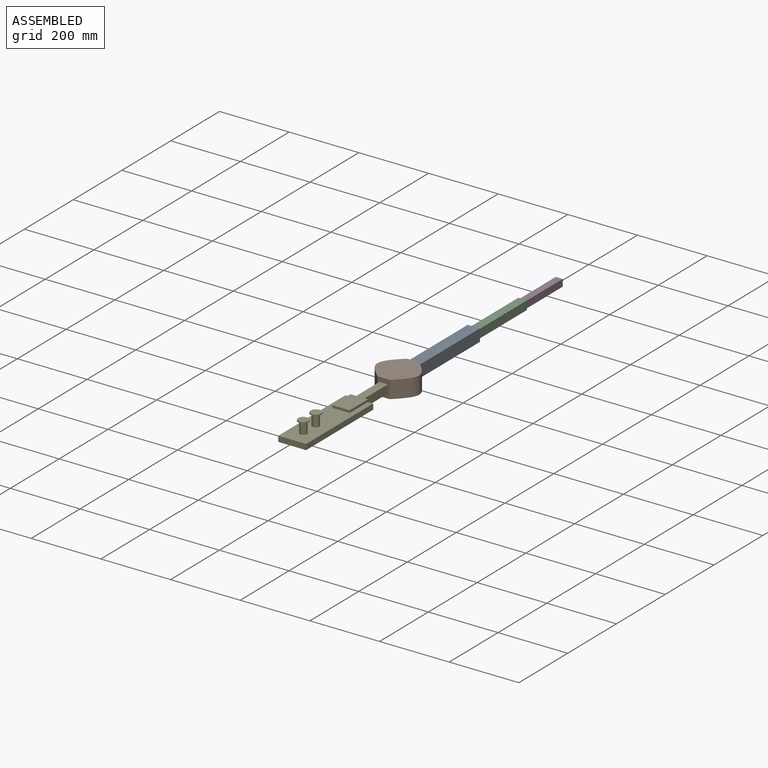
[diagram: assembled view]
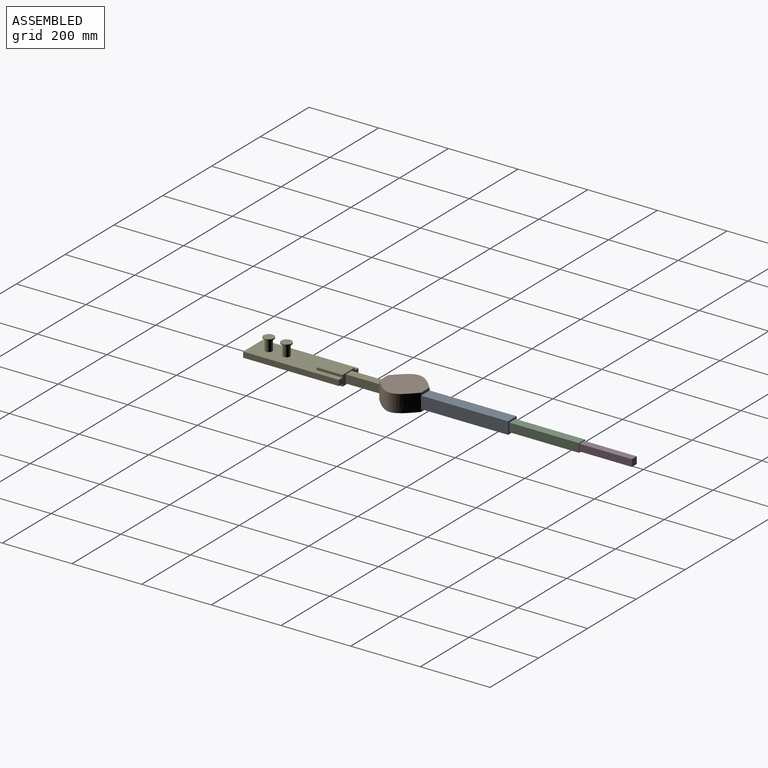
[diagram: assembled view, second angle]
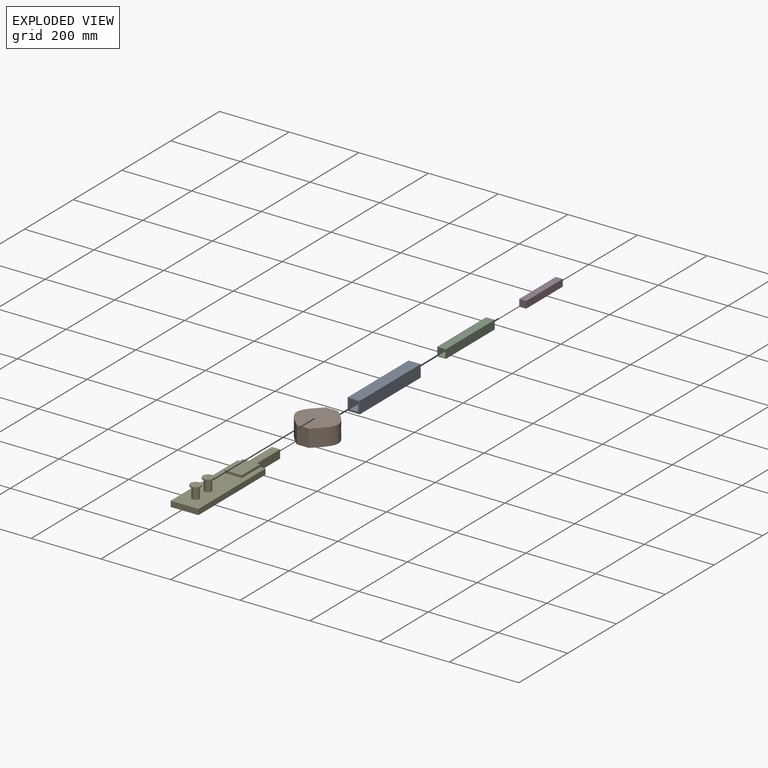
[diagram: exploded view]
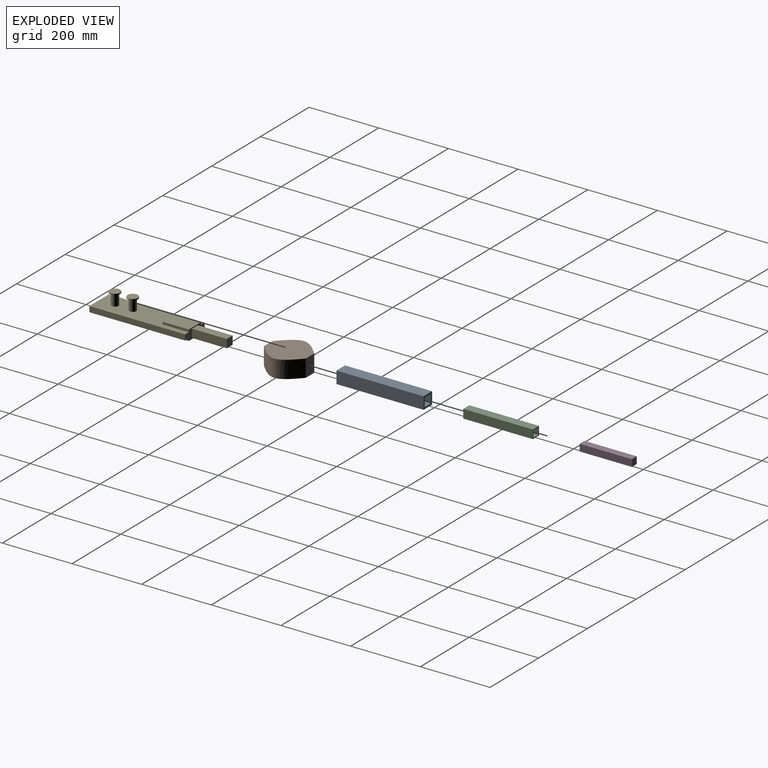
[diagram: exploded view, second angle]
ASSEMBLY  parts=5 mates=4
PART A: 10 faces, bbox 35x250x35 mm
  f0: plane 35x35mm, normal (0,1,0), area 600mm2, adj f1,f2,f3,f4,f6,f7,f8,f9
  f1: plane 250x35mm, normal (1,0,0), area 8750mm2, adj f0,f2,f4,f5
  f2: plane 250x35mm, normal (0,0,1), area 8750mm2, adj f0,f1,f3,f5
  f3: plane 250x35mm, normal (-1,0,0), area 8750mm2, adj f0,f2,f4,f5
  f4: plane 250x35mm, normal (0,0,-1), area 8750mm2, adj f0,f1,f3,f5
  f5: plane 35x35mm, normal (0,-1,0), area 600mm2, adj f1,f2,f3,f4,f6,f7,f8,f9
  f6: plane 250x25mm, normal (0,0,-1), area 6250mm2, adj f0,f5,f7,f9
  f7: plane 250x25mm, normal (1,0,0), area 6250mm2, adj f0,f5,f6,f8
  f8: plane 250x25mm, normal (0,0,1), area 6250mm2, adj f0,f5,f7,f9
  f9: plane 250x25mm, normal (-1,0,0), area 6250mm2, adj f0,f5,f6,f8
PART B: 6 faces, bbox 162.5x120x50 mm
  f0: plane 50x35mm, normal (0,1,0), area 1750mm2, adj f2,f3,f4,f5
  f1: plane 50x35mm, normal (0,-1,0), area 1750mm2, adj f2,f3,f4,f5
  f2: plane 124.43x120mm, normal (0,0,1), area 10575.1mm2, adj f0,f1,f3,f5
  f3: bspline ~120x63.75mm, area 7534.3mm2, adj f0,f1,f2,f4
  f4: plane 124.43x120mm, normal (0,0,-1), area 10575.1mm2, adj f0,f1,f3,f5
  f5: bspline ~120x63.75mm, area 7534.3mm2, adj f0,f1,f2,f4
PART C: 10 faces, bbox 25x200x25 mm
  f0: plane 200x25mm, normal (1,0,0), area 5000mm2, adj f1,f3,f4,f9
  f1: plane 200x25mm, normal (0,0,-1), area 5000mm2, adj f0,f2,f4,f9
  f2: plane 200x25mm, normal (-1,0,0), area 5000mm2, adj f1,f3,f4,f9
  f3: plane 200x25mm, normal (0,0,1), area 5000mm2, adj f0,f2,f4,f9
  f4: plane 25x25mm, normal (0,-1,0), area 225mm2, adj f0,f1,f2,f3,f5,f6,f7,f8
  f5: plane 200x20mm, normal (0,0,-1), area 4000mm2, adj f4,f6,f8,f9
  f6: plane 200x20mm, normal (1,0,0), area 4000mm2, adj f4,f5,f7,f9
  f7: plane 200x20mm, normal (0,0,1), area 4000mm2, adj f4,f6,f8,f9
  f8: plane 200x20mm, normal (-1,0,0), area 4000mm2, adj f4,f5,f7,f9
  f9: plane 25x25mm, normal (0,1,0), area 225mm2, adj f0,f1,f2,f3,f5,f6,f7,f8
PART D: 6 faces, bbox 20x150x20 mm
  f0: plane 20x20mm, normal (0,-1,0), area 400mm2, adj f1,f2,f3,f4
  f1: plane 150x20mm, normal (0,0,-1), area 3000mm2, adj f0,f2,f4,f5
  f2: plane 150x20mm, normal (1,0,0), area 3000mm2, adj f0,f1,f3,f5
  f3: plane 150x20mm, normal (0,0,1), area 3000mm2, adj f0,f2,f4,f5
  f4: plane 150x20mm, normal (-1,0,0), area 3000mm2, adj f0,f1,f3,f5
  f5: plane 20x20mm, normal (0,1,0), area 400mm2, adj f1,f2,f3,f4
PART E: 27 faces, bbox 80x375x58.4 mm
  f0: plane 80x30mm, normal (0,1,0), area 1404mm2, adj f1,f2,f3,f4,f7,f8,f9,f10
  f1: plane 275x80mm, normal (0,0,1), area 17621.7mm2, adj f0,f2,f4,f5,f7,f11,f13,f19
  f2: plane 275x16mm, normal (-1,0,0), area 4400mm2, adj f0,f1,f3,f5
  f3: plane 275x80mm, normal (0,0,-1), area 18250mm2, adj f0,f2,f4,f5,f6,f8,f10
  f4: plane 275x16mm, normal (1,0,0), area 4400mm2, adj f0,f1,f3,f5
  f5: plane 80x16mm, normal (0,-1,0), area 1280mm2, adj f1,f2,f3,f4
  f6: plane 50x7mm, normal (0,-1,0), area 350mm2, adj f3,f8,f9,f10
  f7: plane 75x7mm, normal (-1,0,0), area 525mm2, adj f0,f1,f12,f13
  f8: plane 75x7mm, normal (-1,0,0), area 525mm2, adj f0,f3,f6,f9
  f9: plane 75x50mm, normal (0,0,-1), area 3750mm2, adj f0,f6,f8,f10
  f10: plane 75x7mm, normal (1,0,0), area 525mm2, adj f0,f3,f6,f9
  f11: plane 75x7mm, normal (1,0,0), area 525mm2, adj f0,f1,f12,f13
  f12: plane 75x50mm, normal (0,0,1), area 3750mm2, adj f0,f7,f11,f13
  f13: plane 50x7mm, normal (0,-1,0), area 350mm2, adj f1,f7,f11,f12
  f14: plane 100x24mm, normal (1,0,0), area 2400mm2, adj f0,f15,f17,f18
  f15: plane 100x24mm, normal (0,0,1), area 2400mm2, adj f0,f14,f16,f18
  f16: plane 100x24mm, normal (-1,0,0), area 2400mm2, adj f0,f15,f17,f18
  f17: plane 100x24mm, normal (0,0,-1), area 2400mm2, adj f0,f14,f16,f18
  f18: plane 24x24mm, normal (0,1,0), area 576mm2, adj f14,f15,f16,f17
  f19: cylinder r=10mm len=32mm, axis (0,0,-1), area 2010.6mm2, adj f1,f26
  f20: cylinder r=10mm len=32mm, axis (0,0,-1), area 2010.6mm2, adj f1,f23
  f21: cylinder r=15mm len=30mm, axis (0,0,-1), area 320.4mm2, adj f22,f23
  f22: plane 30x30mm, normal (0,0,1), area 706.9mm2, adj f21
  f23: plane 30x30mm, normal (0,0,-1), area 392.7mm2, adj f20,f21
  f24: cylinder r=15mm len=30mm, axis (0,0,-1), area 320.4mm2, adj f25,f26
  f25: plane 30x30mm, normal (0,0,1), area 706.9mm2, adj f24
  f26: plane 30x30mm, normal (0,0,-1), area 392.7mm2, adj f19,f24
PLACE A rot(axis=(1,0,0),180deg) t=(-150.54,458.79,37)mm
PLACE B t=(-150.54,148.79,37)mm
PLACE C rot(axis=(1,0,0),180deg) t=(-150.54,458.79,37)mm
PLACE D rot(axis=(1,0,0),180deg) t=(-150.54,458.79,37)mm
PLACE E t=(-150.54,-86.21,37)mm
MATE planar C.f9 <-> A.f5  axis (0,-1,0) through (-150.54,458.79,37)mm
MATE planar D.f5 <-> C.f4  axis (0,-1,0) through (-150.54,658.79,37)mm
MATE planar A.f0 <-> B.f0  axis (0,-1,0) through (-150.54,208.79,37)mm
MATE planar E.f18 <-> B.f1  axis (0,1,0) through (-150.54,88.79,37)mm
